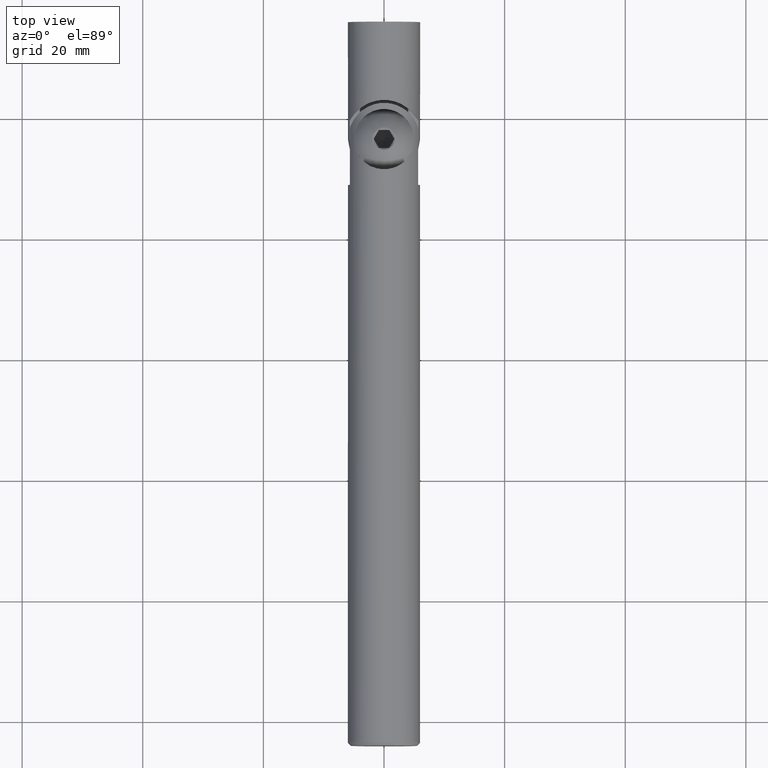
[diagram: clean part render]
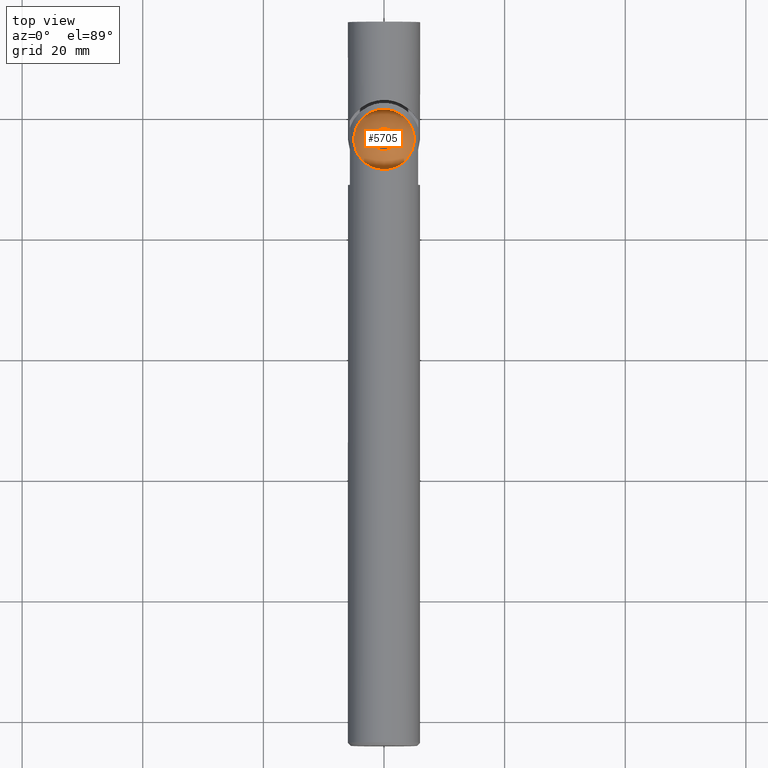
[diagram: same view with one face highlighted and labeled with its STEP entity id]
A machine part, top view. The second image highlights one B-rep face of the part: STEP entity #5705.
In plain terms, the highlighted spherical surface has radius 5.7263 mm.
Its self-contained STEP definition (entity closure, byte-faithful):
#686 = FACE_OUTER_BOUND ( 'NONE', #6607, .T. ) ;
#796 = ORIENTED_EDGE ( 'NONE', *, *, #3628, .F. ) ;
#1080 = DIRECTION ( 'NONE',  ( 0.0000000000000000000, 0.0000000000000000000, -1.000000000000000000 ) ) ;
#1121 = DIRECTION ( 'NONE',  ( -0.0000000000000000000, -1.000000000000000000, -0.0000000000000000000 ) ) ;
#1671 = DIRECTION ( 'NONE',  ( 1.000000000000000000, 0.0000000000000000000, 0.0000000000000000000 ) ) ;
#1723 = DIRECTION ( 'NONE',  ( 0.0000000000000000000, 0.0000000000000000000, 1.000000000000000000 ) ) ;
#1921 = CARTESIAN_POINT ( 'NONE',  ( 0.0000000000000000000, 0.0000000000000000000, 0.0000000000000000000 ) ) ;
#2789 = CIRCLE ( 'NONE', #5628, 1.933000807568875400 ) ;
#3018 = DIRECTION ( 'NONE',  ( -0.0000000000000000000, -1.000000000000000000, -0.0000000000000000000 ) ) ;
#3374 = CARTESIAN_POINT ( 'NONE',  ( 0.0000000000000000000, 2.599050000000000100, 0.0000000000000000000 ) ) ;
#3628 = EDGE_CURVE ( 'NONE', #7511, #7511, #2789, .T. ) ;
#5111 = CARTESIAN_POINT ( 'NONE',  ( 4.336808689942017700E-016, 5.390155783928372000, 0.0000000000000000000 ) ) ;
#5301 = EDGE_LOOP ( 'NONE', ( #796 ) ) ;
#5628 = AXIS2_PLACEMENT_3D ( 'NONE', #1921, #3018, #13885 ) ;
#5705 = ADVANCED_FACE ( 'NONE', ( #686, #6500 ), #9599, .T. ) ;
#5726 = CARTESIAN_POINT ( 'NONE',  ( 0.0000000000000000000, 2.599050000000000100, -5.000000000000000000 ) ) ;
#5924 = EDGE_CURVE ( 'NONE', #9924, #9924, #9435, .T. ) ;
#6500 = FACE_OUTER_BOUND ( 'NONE', #5301, .T. ) ;
#6549 = AXIS2_PLACEMENT_3D ( 'NONE', #5111, #1723, #1671 ) ;
#6607 = EDGE_LOOP ( 'NONE', ( #11996 ) ) ;
#7511 = VERTEX_POINT ( 'NONE', #11272 ) ;
#8013 = AXIS2_PLACEMENT_3D ( 'NONE', #3374, #1121, #1080 ) ;
#9435 = CIRCLE ( 'NONE', #8013, 5.000000000000000000 ) ;
#9599 = SPHERICAL_SURFACE ( 'NONE', #6549, 5.726279027176234500 ) ;
#9924 = VERTEX_POINT ( 'NONE', #5726 ) ;
#11272 = CARTESIAN_POINT ( 'NONE',  ( 0.0000000000000000000, 0.0000000000000000000, -1.933000807568875400 ) ) ;
#11996 = ORIENTED_EDGE ( 'NONE', *, *, #5924, .T. ) ;
#13885 = DIRECTION ( 'NONE',  ( 0.0000000000000000000, 0.0000000000000000000, -1.000000000000000000 ) ) ;